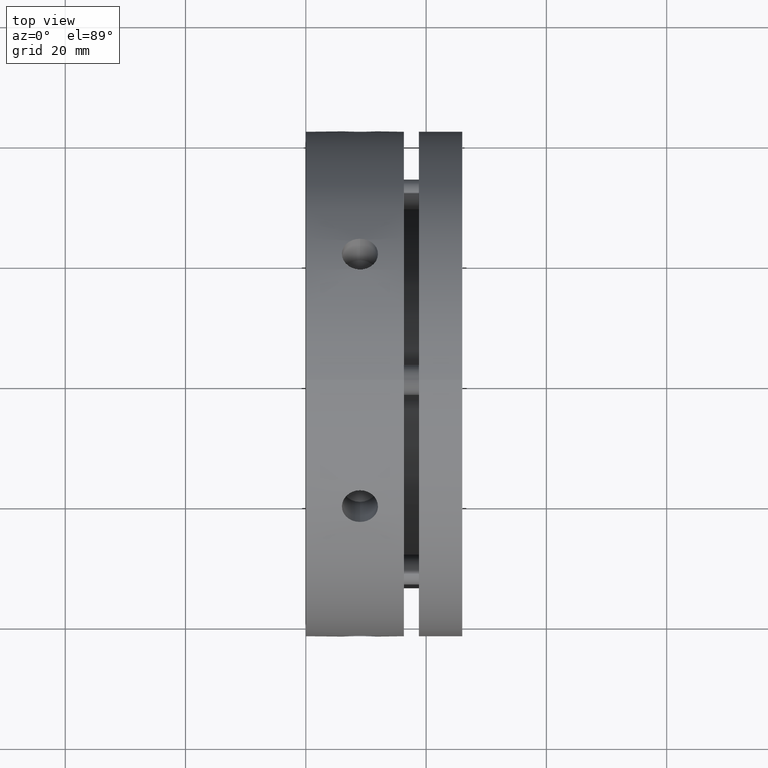
[diagram: clean part render]
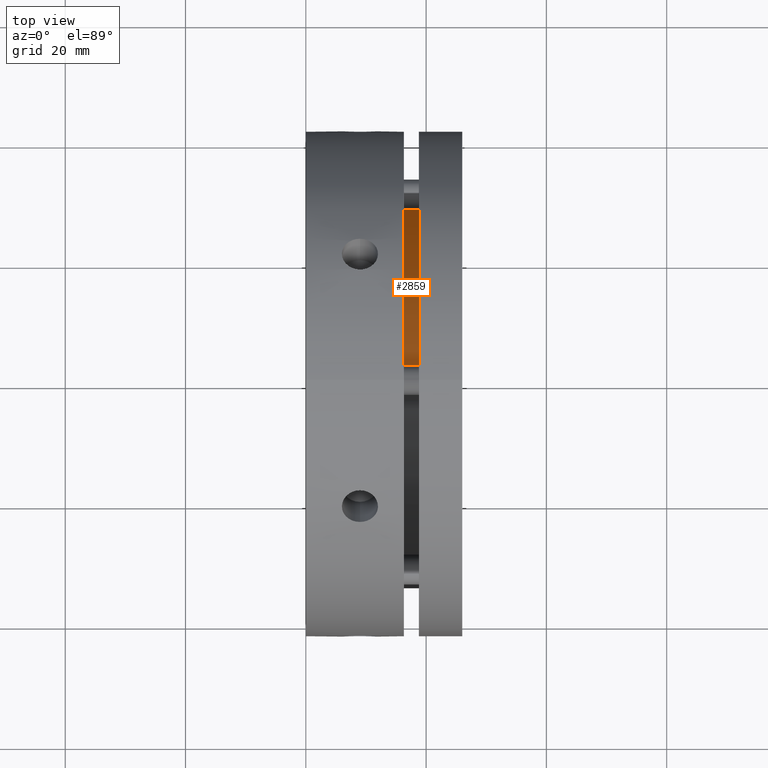
[diagram: same view with one face highlighted and labeled with its STEP entity id]
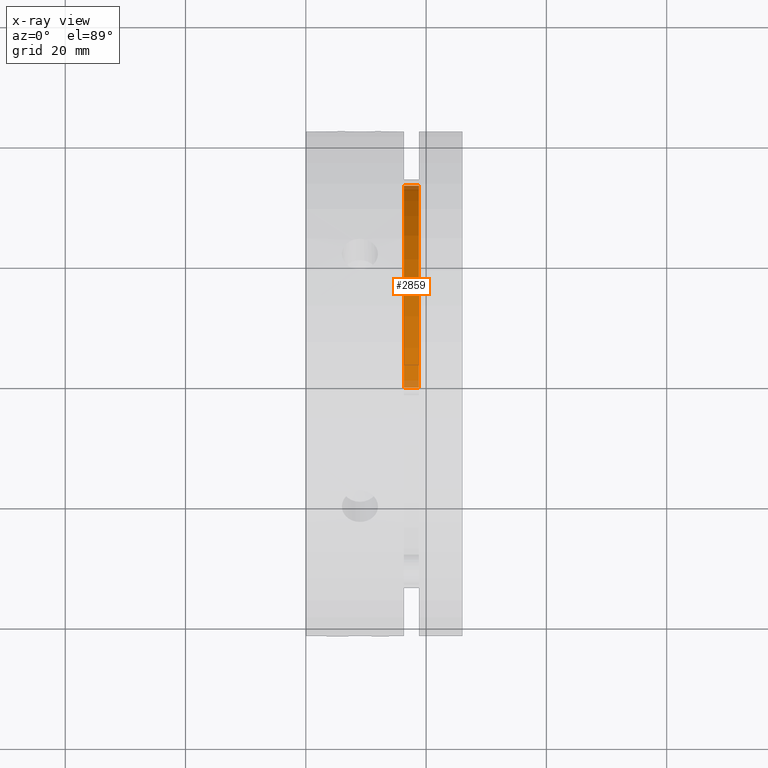
[diagram: x-ray of the same camera — body ghosted, the highlighted face saturated]
A machine part, top view. The second image highlights one B-rep face of the part: STEP entity #2859.
The next image is the same camera in x-ray: the body ghosted, the highlighted face saturated — about 5% of this face is hidden behind the body in this view.
In plain terms, the highlighted cylindrical surface (partial cylindrical patch) has radius 33 mm, axis along (-1, 0, 0).
Its self-contained STEP definition (entity closure, byte-faithful):
#87 = VERTEX_POINT ( 'NONE', #3041 ) ;
#108 = VERTEX_POINT ( 'NONE', #3068 ) ;
#109 = VERTEX_POINT ( 'NONE', #3069 ) ;
#110 = VERTEX_POINT ( 'NONE', #3070 ) ;
#306 = CARTESIAN_POINT ( 'NONE',  ( 16.29999999999999400, 0.0000000000000000000, 0.0000000000000000000 ) ) ;
#307 = DIRECTION ( 'NONE',  ( 1.000000000000000000, -0.0000000000000000000, -0.0000000000000000000 ) ) ;
#308 = DIRECTION ( 'NONE',  ( 0.0000000000000000000, 0.0000000000000000000, 1.000000000000000000 ) ) ;
#317 = CARTESIAN_POINT ( 'NONE',  ( 17.54999999999999400, 0.0000000000000000000, 33.00000000000000700 ) ) ;
#318 = DIRECTION ( 'NONE',  ( -1.000000000000000000, 0.0000000000000000000, 0.0000000000000000000 ) ) ;
#332 = CARTESIAN_POINT ( 'NONE',  ( 18.79999999999999400, 0.0000000000000000000, 0.0000000000000000000 ) ) ;
#333 = DIRECTION ( 'NONE',  ( -1.000000000000000000, 0.0000000000000000000, 0.0000000000000000000 ) ) ;
#334 = DIRECTION ( 'NONE',  ( 0.0000000000000000000, 0.0000000000000000000, 1.000000000000000000 ) ) ;
#338 = CARTESIAN_POINT ( 'NONE',  ( 17.54999999999999400, 4.041334437186267000E-015, -33.00000000000000700 ) ) ;
#339 = DIRECTION ( 'NONE',  ( -1.000000000000000000, 0.0000000000000000000, 0.0000000000000000000 ) ) ;
#951 = ORIENTED_EDGE ( 'NONE', *, *, #4691, .F. ) ;
#952 = ORIENTED_EDGE ( 'NONE', *, *, #4684, .T. ) ;
#953 = ORIENTED_EDGE ( 'NONE', *, *, #4697, .T. ) ;
#954 = ORIENTED_EDGE ( 'NONE', *, *, #4693, .T. ) ;
#1704 = EDGE_LOOP ( 'NONE', ( #954, #953, #952, #951 ) ) ;
#1854 = AXIS2_PLACEMENT_3D ( 'NONE', #3929, #3927, #3925 ) ;
#2363 = FACE_OUTER_BOUND ( 'NONE', #1704, .T. ) ;
#2367 = CYLINDRICAL_SURFACE ( 'NONE', #1854, 33.00000000000000700 ) ;
#2622 = CIRCLE ( 'NONE', #4531, 33.00000000000000700 ) ;
#2628 = CIRCLE ( 'NONE', #4537, 33.00000000000000700 ) ;
#2631 = LINE ( 'NONE', #317, #2633 ) ;
#2633 = VECTOR ( 'NONE', #318, 1000.000000000000000 ) ;
#2640 = LINE ( 'NONE', #338, #2643 ) ;
#2643 = VECTOR ( 'NONE', #339, 1000.000000000000000 ) ;
#2859 = ADVANCED_FACE ( 'NONE', ( #2363 ), #2367, .T. ) ;
#3041 = CARTESIAN_POINT ( 'NONE',  ( 18.79999999999999400, 0.0000000000000000000, 33.00000000000000700 ) ) ;
#3068 = CARTESIAN_POINT ( 'NONE',  ( 16.29999999999999400, 0.0000000000000000000, 33.00000000000000700 ) ) ;
#3069 = CARTESIAN_POINT ( 'NONE',  ( 16.29999999999999400, 4.041334437186267000E-015, -33.00000000000000700 ) ) ;
#3070 = CARTESIAN_POINT ( 'NONE',  ( 18.79999999999999400, 4.041334437186267000E-015, -33.00000000000000700 ) ) ;
#3925 = DIRECTION ( 'NONE',  ( 0.0000000000000000000, 0.0000000000000000000, 1.000000000000000000 ) ) ;
#3927 = DIRECTION ( 'NONE',  ( -1.000000000000000000, 0.0000000000000000000, 0.0000000000000000000 ) ) ;
#3929 = CARTESIAN_POINT ( 'NONE',  ( 17.54999999999999400, 0.0000000000000000000, 0.0000000000000000000 ) ) ;
#4531 = AXIS2_PLACEMENT_3D ( 'NONE', #306, #307, #308 ) ;
#4537 = AXIS2_PLACEMENT_3D ( 'NONE', #332, #333, #334 ) ;
#4684 = EDGE_CURVE ( 'NONE', #109, #108, #2622, .T. ) ;
#4691 = EDGE_CURVE ( 'NONE', #87, #108, #2631, .T. ) ;
#4693 = EDGE_CURVE ( 'NONE', #87, #110, #2628, .T. ) ;
#4697 = EDGE_CURVE ( 'NONE', #110, #109, #2640, .T. ) ;